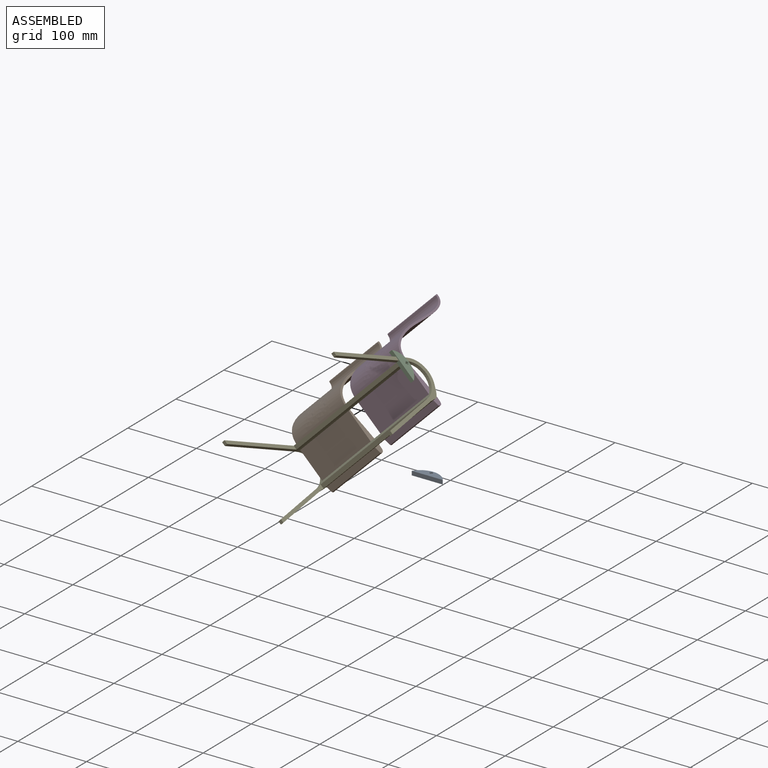
[diagram: assembled view]
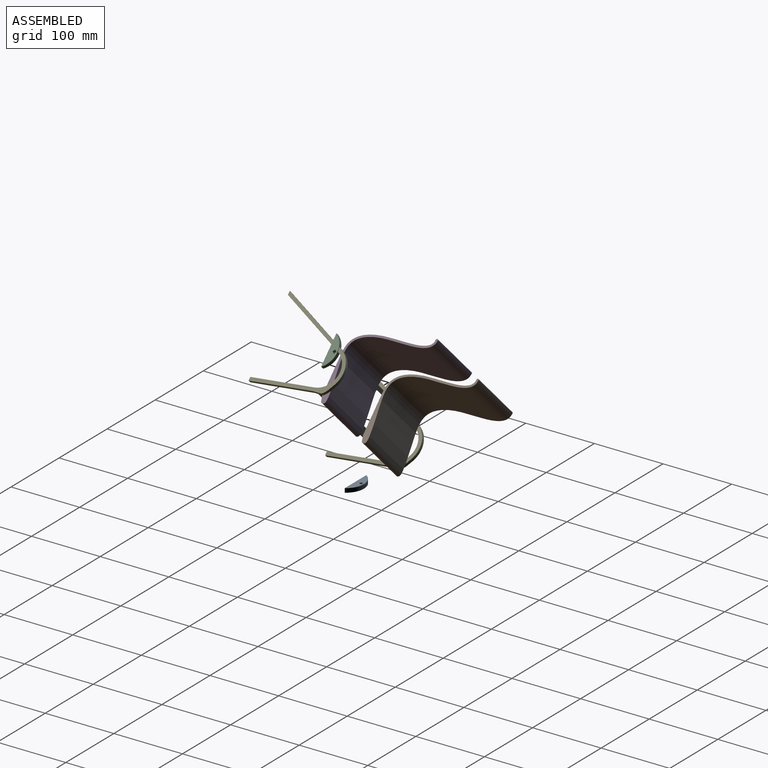
[diagram: assembled view, second angle]
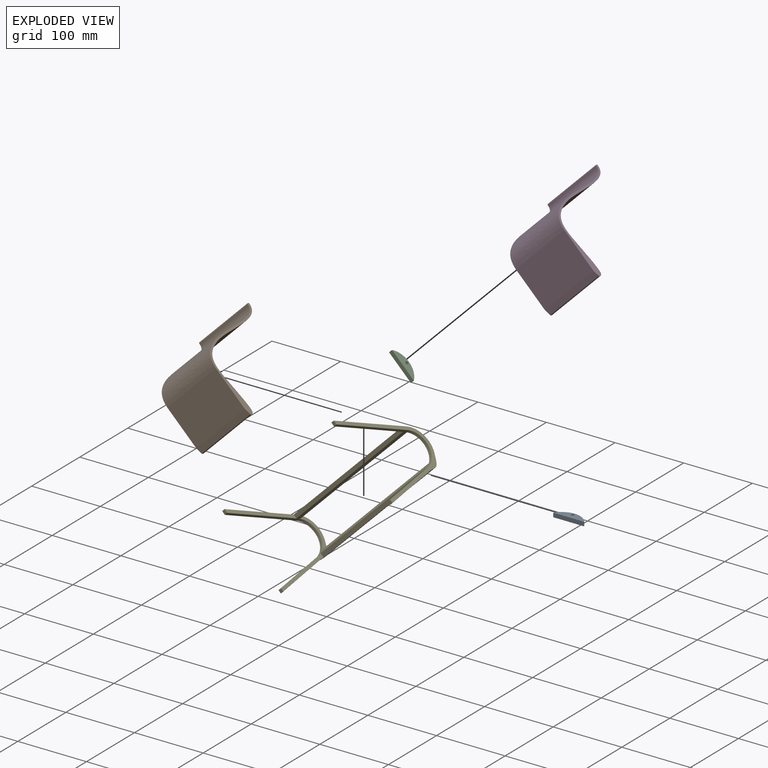
[diagram: exploded view]
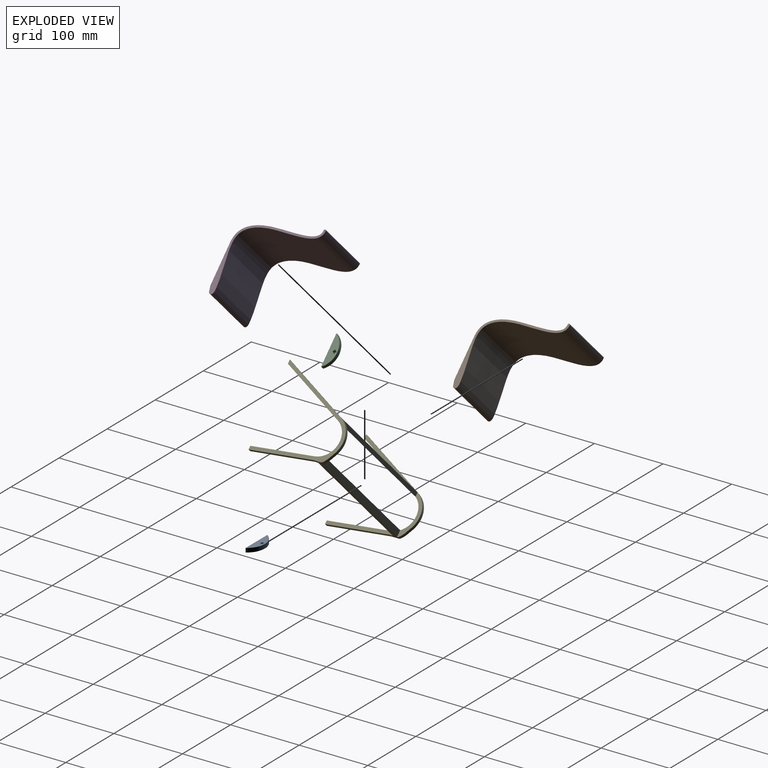
[diagram: exploded view, second angle]
ASSEMBLY  parts=5 mates=4
PART A: 20 faces, bbox 45.1x12.3x6 mm
  f0: plane 45.15x6mm, normal (0,-1,0), area 270.9mm2, adj f13,f14,f15
  f1: plane 6x0.7mm, normal (0,1,0), area 4.2mm2, adj f2,f14,f15,f19
  f2: plane 6x1.78mm, normal (1,0,0), area 10.7mm2, adj f1,f3,f14,f15
  f3: plane 6x0.7mm, normal (0,-1,0), area 4.2mm2, adj f2,f14,f15,f16
  f4: plane 6x0.7mm, normal (1,0,0), area 4.2mm2, adj f5,f14,f15,f16
  f5: plane 6x1.78mm, normal (0,-1,0), area 10.7mm2, adj f4,f6,f14,f15
  f6: plane 6x0.7mm, normal (-1,0,0), area 4.2mm2, adj f5,f14,f15,f17
  f7: plane 6x0.7mm, normal (0,-1,0), area 4.2mm2, adj f8,f14,f15,f17
  f8: plane 6x1.78mm, normal (-1,0,0), area 10.7mm2, adj f7,f9,f14,f15
  f9: plane 6x0.7mm, normal (0,1,0), area 4.2mm2, adj f8,f14,f15,f18
  f10: plane 6x0.7mm, normal (-1,0,0), area 4.2mm2, adj f11,f14,f15,f18
  f11: plane 6x1.78mm, normal (0,1,0), area 10.7mm2, adj f10,f12,f14,f15
  f12: plane 6x0.7mm, normal (1,0,0), area 4.2mm2, adj f11,f14,f15,f19
  f13: cylinder r=26.85mm len=45.15mm, axis (0,0,-1), area 321.8mm2, adj f0,f14,f15
  f14: plane 45.15x12.31mm, normal (0,0,1), area 377.4mm2, adj f0,f1,f2,f3,f4,f5,f6,f7
  f15: plane 45.15x12.31mm, normal (0,0,-1), area 377.4mm2, adj f0,f1,f2,f3,f4,f5,f6,f7
  f16: cylinder r=0.8mm len=6mm, axis (0,0,-1), area 7.5mm2, adj f3,f4,f14,f15
  f17: cylinder r=0.8mm len=6mm, axis (0,0,1), area 7.5mm2, adj f6,f7,f14,f15
  f18: cylinder r=0.8mm len=6mm, axis (0,0,-1), area 7.5mm2, adj f9,f10,f14,f15
  f19: cylinder r=0.8mm len=6mm, axis (0,0,1), area 7.5mm2, adj f1,f12,f14,f15
PART B: 8 faces, bbox 116.9x116x100 mm
  f0: extruded ~114.67x113.23mm, area 20953.3mm2, adj f4,f5,f6,f7
  f1: extruded ~112.97x100mm, area 13547.2mm2, adj f2,f4,f5,f6
  f2: plane 100x60mm, normal (0,-1,0), area 6000mm2, adj f1,f3,f4,f5
  f3: plane 100x8.25mm, normal (0.26,-0.97,0), area 853.2mm2, adj f2,f4,f5,f7
  f4: plane 116.94x115.97mm, normal (0,0,1), area 825.4mm2, adj f0,f1,f2,f3,f6,f7
  f5: plane 116.94x115.97mm, normal (0,0,-1), area 825.4mm2, adj f0,f1,f2,f3,f6,f7
  f6: cylinder r=1.5mm len=100mm, axis (0,0,-1), area 471.2mm2, adj f0,f1,f4,f5
  f7: cylinder r=1.5mm len=100mm, axis (0,0,-1), area 100.9mm2, adj f0,f3,f4,f5
PART C: same geometry as A
PART D: same geometry as B
PART E: 30 faces, bbox 121.2x117.3x230 mm
  f0: plane 93.86x16.2mm, normal (0,0,1), area 474.6mm2, adj f8,f9,f10,f11,f12,f18
  f1: plane 60x17.34mm, normal (0,0,1), area 339.5mm2, adj f2,f3,f4,f8,f16,f17
  f2: extruded ~15.74x13.09mm, area 105.2mm2, adj f1,f3,f12,f14
  f3: extruded ~5x2.26mm, area 12.8mm2, adj f1,f2,f4,f14
  f4: cylinder r=31.85mm len=42mm, axis (0,0,-1), area 245.3mm2, adj f1,f3,f5,f14
  f5: plane 230x100mm, normal (-0.89,0.46,0), area 2375.9mm2, adj f4,f6,f13,f14,f15,f16,f19,f26
  f6: plane 5.62x5mm, normal (0,-1,0), area 28.1mm2, adj f5,f7,f13,f14
  f7: plane 230x97.72mm, normal (0.89,-0.46,0), area 1787.5mm2, adj f6,f8,f13,f14,f15,f19,f27,f28
  f8: cylinder r=26.85mm len=230mm, axis (0,0,-1), area 2763.5mm2, adj f0,f1,f7,f9,f14,f16,f17,f18
  f9: plane 88.51x10mm, normal (-0.99,-0.11,0), area 445.4mm2, adj f0,f8,f10,f14
  f10: plane 5.03x5mm, normal (0,-1,0), area 25.2mm2, adj f0,f9,f11,f14
  f11: plane 89.07x10.06mm, normal (0.99,0.11,0), area 448.2mm2, adj f0,f10,f12,f14
  f12: plane 230x10.93mm, normal (1,0,0), area 1459.4mm2, adj f0,f2,f11,f14,f17,f18,f20,f23
  f13: plane 94.93x54.19mm, normal (0,0,1), area 533.2mm2, adj f5,f6,f7,f15
  f14: plane 121.23x117.34mm, normal (0,0,-1), area 1421.4mm2, adj f2,f3,f4,f5,f6,f7,f8,f9
  f15: plane 220x5.62mm, normal (0,-1,0), area 1235.6mm2, adj f5,f7,f13,f19
  f16: plane 220x5.76mm, normal (0,1,0), area 1267.4mm2, adj f1,f5,f8,f29
  f17: plane 220x9.06mm, normal (0,1,0), area 1992.1mm2, adj f1,f8,f12,f29
  f18: plane 220x6.14mm, normal (0,-1,0), area 1350.1mm2, adj f0,f8,f12,f20
  f19: plane 94.93x54.19mm, normal (0,0,-1), area 533.2mm2, adj f5,f7,f15,f27
  f20: plane 93.86x16.2mm, normal (0,0,-1), area 474.6mm2, adj f8,f12,f18,f21,f22,f23
  f21: plane 88.51x10mm, normal (-0.99,-0.11,0), area 445.4mm2, adj f8,f20,f22,f28
  f22: plane 5.03x5mm, normal (0,-1,0), area 25.2mm2, adj f20,f21,f23,f28
  f23: plane 89.07x10.06mm, normal (0.99,0.11,0), area 448.2mm2, adj f12,f20,f22,f28
  f24: extruded ~15.74x13.09mm, area 105.2mm2, adj f12,f25,f28,f29
  f25: extruded ~5x2.26mm, area 12.8mm2, adj f24,f26,f28,f29
  f26: cylinder r=31.85mm len=42mm, axis (0,0,-1), area 245.3mm2, adj f5,f25,f28,f29
  f27: plane 5.62x5mm, normal (0,-1,0), area 28.1mm2, adj f5,f7,f19,f28
  f28: plane 121.23x117.34mm, normal (0,0,1), area 1421.4mm2, adj f5,f7,f8,f12,f21,f22,f23,f24
  f29: plane 60x17.34mm, normal (0,0,-1), area 339.5mm2, adj f8,f16,f17,f24,f25,f26
PLACE A t=(21.69,3.16,-27.37)mm
PLACE B rot(axis=(0,1,0),45deg) t=(-157.93,86.39,15.69)mm
PLACE C rot(axis=(0,1,0),45deg) t=(18.63,-39.66,150.24)mm
PLACE D rot(axis=(0,1,0),45deg) t=(-73.08,86.39,100.54)mm
PLACE E rot(axis=(0,1,0),45deg) t=(-125.44,-27.43,-23.88)mm
MATE planar D.f2 <-> E.f16  axis (0,-1,0) through (16.37,-25.16,81.8)mm
MATE fastened C.f15 <-> E.f4  axis (-0.71,0,-0.71) through (50.56,-39.66,118.32)mm
MATE fastened E.f29 <-> D.f4  axis (-0.71,0,-0.71) through (72.94,-25.16,95.94)mm
MATE fastened B.f5 <-> E.f1  axis (0.71,0,0.71) through (-82.63,-25.16,-59.62)mm
